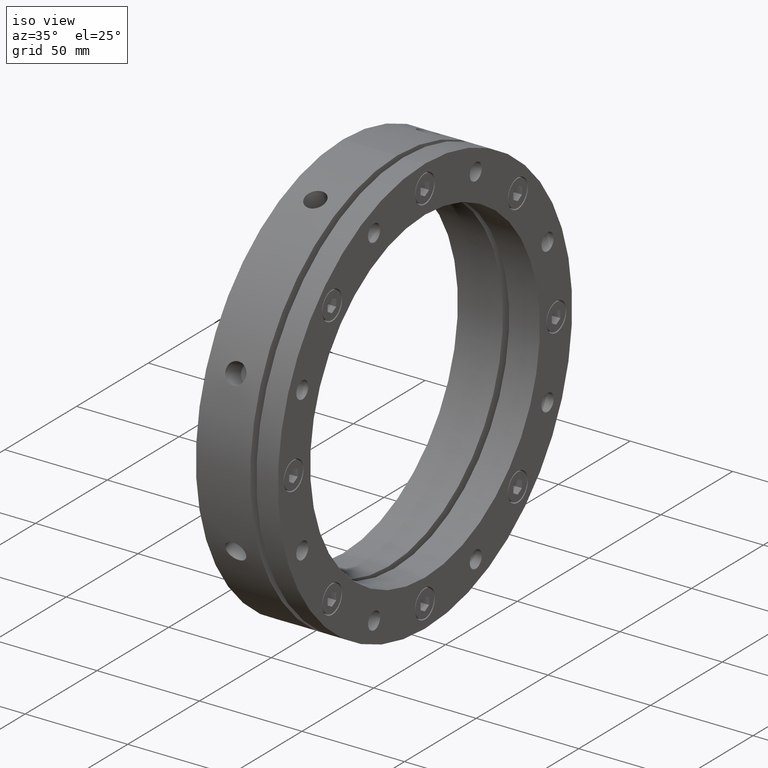
[diagram: clean part render]
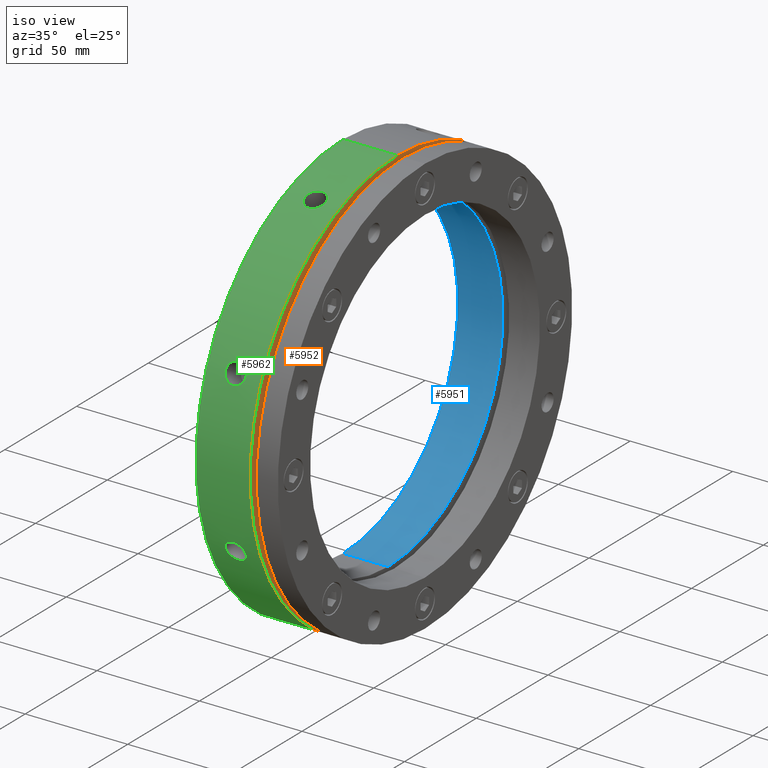
[diagram: same view with three faces highlighted in distinct colors, each labeled with its STEP entity id]
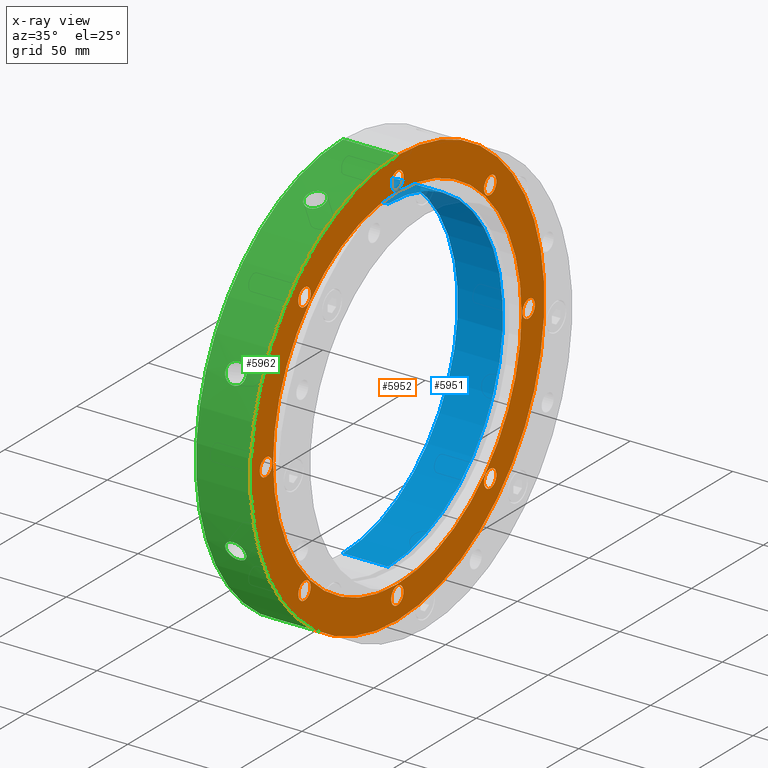
[diagram: x-ray of the same camera — body ghosted, the three highlighted faces saturated]
A machine part, iso view with three faces highlighted in distinct colors.
The next image is the same camera in x-ray (body ghosted, the three faces saturated) — at least one of them is partly hidden behind the body in this view.
Their STEP definitions:

[orange] entity #5952 — the highlighted planar face has unit normal (-1, 0, 0).
#6 = AXIS2_PLACEMENT_3D ( 'NONE', #4131, #4132, #4133 ) ;
#7 = AXIS2_PLACEMENT_3D ( 'NONE', #4134, #4135, #4136 ) ;
#8 = AXIS2_PLACEMENT_3D ( 'NONE', #4137, #4138, #4139 ) ;
#9 = AXIS2_PLACEMENT_3D ( 'NONE', #4140, #4141, #4142 ) ;
#10 = AXIS2_PLACEMENT_3D ( 'NONE', #4143, #4144, #4145 ) ;
#11 = AXIS2_PLACEMENT_3D ( 'NONE', #4146, #4147, #4148 ) ;
#29 = AXIS2_PLACEMENT_3D ( 'NONE', #4203, #4204, #4205 ) ;
#39 = AXIS2_PLACEMENT_3D ( 'NONE', #4636, #4637, #4638 ) ;
#121 = AXIS2_PLACEMENT_3D ( 'NONE', #404, #400, #406 ) ;
#400 = DIRECTION ( 'NONE',  ( -1.000000000000000000, 0.0000000000000000000, 0.0000000000000000000 ) ) ;
#402 = PLANE ( 'NONE',  #121 ) ;
#404 = CARTESIAN_POINT ( 'NONE',  ( 26.49999999999997900, 94.50000000000000000, 0.0000000000000000000 ) ) ;
#406 = DIRECTION ( 'NONE',  ( 0.0000000000000000000, 0.0000000000000000000, 1.000000000000000000 ) ) ;
#836 = AXIS2_PLACEMENT_3D ( 'NONE', #4128, #4129, #4130 ) ;
#837 = VERTEX_POINT ( 'NONE', #1422 ) ;
#911 = VERTEX_POINT ( 'NONE', #1492 ) ;
#912 = VERTEX_POINT ( 'NONE', #1493 ) ;
#915 = VERTEX_POINT ( 'NONE', #1496 ) ;
#916 = VERTEX_POINT ( 'NONE', #1497 ) ;
#919 = VERTEX_POINT ( 'NONE', #1500 ) ;
#920 = VERTEX_POINT ( 'NONE', #1501 ) ;
#923 = VERTEX_POINT ( 'NONE', #1504 ) ;
#924 = VERTEX_POINT ( 'NONE', #1505 ) ;
#927 = VERTEX_POINT ( 'NONE', #1508 ) ;
#928 = VERTEX_POINT ( 'NONE', #1509 ) ;
#931 = VERTEX_POINT ( 'NONE', #1512 ) ;
#932 = VERTEX_POINT ( 'NONE', #1513 ) ;
#935 = VERTEX_POINT ( 'NONE', #1516 ) ;
#936 = VERTEX_POINT ( 'NONE', #1517 ) ;
#939 = VERTEX_POINT ( 'NONE', #1520 ) ;
#940 = VERTEX_POINT ( 'NONE', #1521 ) ;
#943 = VERTEX_POINT ( 'NONE', #1524 ) ;
#944 = VERTEX_POINT ( 'NONE', #1525 ) ;
#1217 = EDGE_LOOP ( 'NONE', ( #2996, #2997 ) ) ;
#1221 = EDGE_LOOP ( 'NONE', ( #2994, #2995 ) ) ;
#1237 = EDGE_LOOP ( 'NONE', ( #3000, #3001 ) ) ;
#1238 = EDGE_LOOP ( 'NONE', ( #2998, #2999 ) ) ;
#1247 = EDGE_LOOP ( 'NONE', ( #3002, #3003 ) ) ;
#1248 = EDGE_LOOP ( 'NONE', ( #3004, #3005 ) ) ;
#1249 = EDGE_LOOP ( 'NONE', ( #3006, #3007 ) ) ;
#1250 = EDGE_LOOP ( 'NONE', ( #3008, #3009 ) ) ;
#1251 = EDGE_LOOP ( 'NONE', ( #3010, #3011 ) ) ;
#1252 = EDGE_LOOP ( 'NONE', ( #3012, #3013 ) ) ;
#1422 = CARTESIAN_POINT ( 'NONE',  ( 26.49999999999997900, 0.0000000000000000000, -102.5000000000000100 ) ) ;
#1492 = CARTESIAN_POINT ( 'NONE',  ( 26.49999999999997900, 1.059319481262460600E-014, -86.50000000000001400 ) ) ;
#1493 = CARTESIAN_POINT ( 'NONE',  ( 26.49999999999997900, 0.0000000000000000000, 86.50000000000001400 ) ) ;
#1496 = CARTESIAN_POINT ( 'NONE',  ( 26.49999999999997900, 5.265981236333620400E-016, 95.79999999999999700 ) ) ;
#1497 = CARTESIAN_POINT ( 'NONE',  ( 26.49999999999997900, 0.0000000000000000000, 87.20000000000000300 ) ) ;
#1500 = CARTESIAN_POINT ( 'NONE',  ( 26.49999999999997900, -64.70027047856909500, 69.00027047856910700 ) ) ;
#1501 = CARTESIAN_POINT ( 'NONE',  ( 26.49999999999997900, -64.70027047856909500, 60.40027047856910500 ) ) ;
#1504 = CARTESIAN_POINT ( 'NONE',  ( 26.49999999999997900, -91.50000000000000000, 4.299999999999999800 ) ) ;
#1505 = CARTESIAN_POINT ( 'NONE',  ( 26.49999999999997900, -91.50000000000000000, -4.299999999999999800 ) ) ;
#1508 = CARTESIAN_POINT ( 'NONE',  ( 26.49999999999997900, -64.70027047856910900, -60.40027047856909100 ) ) ;
#1509 = CARTESIAN_POINT ( 'NONE',  ( 26.49999999999997900, -64.70027047856910900, -69.00027047856909200 ) ) ;
#1512 = CARTESIAN_POINT ( 'NONE',  ( 26.49999999999997900, -1.723697187636663600E-014, -87.20000000000000300 ) ) ;
#1513 = CARTESIAN_POINT ( 'NONE',  ( 26.49999999999997900, -1.776356999999999900E-014, -95.79999999999999700 ) ) ;
#1516 = CARTESIAN_POINT ( 'NONE',  ( 26.49999999999997900, 64.70027047856908100, -60.40027047856910500 ) ) ;
#1517 = CARTESIAN_POINT ( 'NONE',  ( 26.49999999999997900, 64.70027047856908100, -69.00027047856910700 ) ) ;
#1520 = CARTESIAN_POINT ( 'NONE',  ( 26.49999999999997900, 91.50000000000000000, 4.299999999999982900 ) ) ;
#1521 = CARTESIAN_POINT ( 'NONE',  ( 26.49999999999997900, 91.50000000000000000, -4.300000000000017600 ) ) ;
#1524 = CARTESIAN_POINT ( 'NONE',  ( 26.49999999999997900, 64.70027047856912400, 69.00027047856907800 ) ) ;
#1525 = CARTESIAN_POINT ( 'NONE',  ( 26.49999999999997900, 64.70027047856912400, 60.40027047856907700 ) ) ;
#1705 = CARTESIAN_POINT ( 'NONE',  ( 26.49999999999997900, 0.0000000000000000000, 0.0000000000000000000 ) ) ;
#1706 = DIRECTION ( 'NONE',  ( 1.000000000000000000, -0.0000000000000000000, -0.0000000000000000000 ) ) ;
#1707 = DIRECTION ( 'NONE',  ( 0.0000000000000000000, 0.0000000000000000000, 1.000000000000000000 ) ) ;
#1917 = CARTESIAN_POINT ( 'NONE',  ( 26.49999999999997900, 0.0000000000000000000, 91.50000000000000000 ) ) ;
#1918 = DIRECTION ( 'NONE',  ( 1.000000000000000000, 0.0000000000000000000, 0.0000000000000000000 ) ) ;
#1919 = DIRECTION ( 'NONE',  ( 0.0000000000000000000, 0.0000000000000000000, -1.000000000000000000 ) ) ;
#1927 = CARTESIAN_POINT ( 'NONE',  ( 26.49999999999997900, -64.70027047856909500, 64.70027047856910900 ) ) ;
#1928 = DIRECTION ( 'NONE',  ( 1.000000000000000000, 0.0000000000000000000, 0.0000000000000000000 ) ) ;
#1929 = DIRECTION ( 'NONE',  ( 0.0000000000000000000, 0.0000000000000000000, -1.000000000000000000 ) ) ;
#1937 = CARTESIAN_POINT ( 'NONE',  ( 26.49999999999997900, -91.50000000000000000, 0.0000000000000000000 ) ) ;
#1938 = DIRECTION ( 'NONE',  ( 1.000000000000000000, 0.0000000000000000000, 0.0000000000000000000 ) ) ;
#1939 = DIRECTION ( 'NONE',  ( 0.0000000000000000000, 0.0000000000000000000, -1.000000000000000000 ) ) ;
#1947 = CARTESIAN_POINT ( 'NONE',  ( 26.49999999999997900, -64.70027047856910900, -64.70027047856909500 ) ) ;
#1948 = DIRECTION ( 'NONE',  ( 1.000000000000000000, 0.0000000000000000000, 0.0000000000000000000 ) ) ;
#1949 = DIRECTION ( 'NONE',  ( 0.0000000000000000000, 0.0000000000000000000, -1.000000000000000000 ) ) ;
#1957 = CARTESIAN_POINT ( 'NONE',  ( 26.49999999999997900, -1.776356999999999900E-014, -91.50000000000000000 ) ) ;
#1958 = DIRECTION ( 'NONE',  ( 1.000000000000000000, 0.0000000000000000000, 0.0000000000000000000 ) ) ;
#1959 = DIRECTION ( 'NONE',  ( 0.0000000000000000000, 0.0000000000000000000, -1.000000000000000000 ) ) ;
#1967 = CARTESIAN_POINT ( 'NONE',  ( 26.49999999999997900, 64.70027047856908100, -64.70027047856910900 ) ) ;
#1968 = DIRECTION ( 'NONE',  ( 1.000000000000000000, 0.0000000000000000000, 0.0000000000000000000 ) ) ;
#1969 = DIRECTION ( 'NONE',  ( 0.0000000000000000000, 0.0000000000000000000, -1.000000000000000000 ) ) ;
#1977 = CARTESIAN_POINT ( 'NONE',  ( 26.49999999999997900, 91.50000000000000000, -1.776356999999999900E-014 ) ) ;
#1978 = DIRECTION ( 'NONE',  ( 1.000000000000000000, 0.0000000000000000000, 0.0000000000000000000 ) ) ;
#1979 = DIRECTION ( 'NONE',  ( 0.0000000000000000000, 0.0000000000000000000, -1.000000000000000000 ) ) ;
#1987 = CARTESIAN_POINT ( 'NONE',  ( 26.49999999999997900, 64.70027047856912400, 64.70027047856908100 ) ) ;
#1988 = DIRECTION ( 'NONE',  ( 1.000000000000000000, 0.0000000000000000000, 0.0000000000000000000 ) ) ;
#1989 = DIRECTION ( 'NONE',  ( 0.0000000000000000000, 0.0000000000000000000, -1.000000000000000000 ) ) ;
#2082 = CARTESIAN_POINT ( 'NONE',  ( 26.49999999999997900, 1.255262969126037200E-014, 102.5000000000000100 ) ) ;
#2290 = AXIS2_PLACEMENT_3D ( 'NONE', #4122, #4123, #4124 ) ;
#2387 = AXIS2_PLACEMENT_3D ( 'NONE', #1987, #1988, #1989 ) ;
#2389 = AXIS2_PLACEMENT_3D ( 'NONE', #1977, #1978, #1979 ) ;
#2391 = AXIS2_PLACEMENT_3D ( 'NONE', #1967, #1968, #1969 ) ;
#2393 = AXIS2_PLACEMENT_3D ( 'NONE', #1957, #1958, #1959 ) ;
#2395 = AXIS2_PLACEMENT_3D ( 'NONE', #1947, #1948, #1949 ) ;
#2397 = AXIS2_PLACEMENT_3D ( 'NONE', #1937, #1938, #1939 ) ;
#2399 = AXIS2_PLACEMENT_3D ( 'NONE', #1927, #1928, #1929 ) ;
#2400 = AXIS2_PLACEMENT_3D ( 'NONE', #1917, #1918, #1919 ) ;
#2425 = AXIS2_PLACEMENT_3D ( 'NONE', #1705, #1706, #1707 ) ;
#2449 = EDGE_CURVE ( 'NONE', #911, #912, #3179, .T. ) ;
#2994 = ORIENTED_EDGE ( 'NONE', *, *, #5694, .F. ) ;
#2995 = ORIENTED_EDGE ( 'NONE', *, *, #2449, .F. ) ;
#2996 = ORIENTED_EDGE ( 'NONE', *, *, #5693, .F. ) ;
#2997 = ORIENTED_EDGE ( 'NONE', *, *, #5412, .F. ) ;
#2998 = ORIENTED_EDGE ( 'NONE', *, *, #5692, .F. ) ;
#2999 = ORIENTED_EDGE ( 'NONE', *, *, #5416, .F. ) ;
#3000 = ORIENTED_EDGE ( 'NONE', *, *, #5691, .F. ) ;
#3001 = ORIENTED_EDGE ( 'NONE', *, *, #5420, .F. ) ;
#3002 = ORIENTED_EDGE ( 'NONE', *, *, #5690, .F. ) ;
#3003 = ORIENTED_EDGE ( 'NONE', *, *, #5424, .F. ) ;
#3004 = ORIENTED_EDGE ( 'NONE', *, *, #5689, .F. ) ;
#3005 = ORIENTED_EDGE ( 'NONE', *, *, #5428, .F. ) ;
#3006 = ORIENTED_EDGE ( 'NONE', *, *, #5688, .F. ) ;
#3007 = ORIENTED_EDGE ( 'NONE', *, *, #5432, .F. ) ;
#3008 = ORIENTED_EDGE ( 'NONE', *, *, #5687, .F. ) ;
#3009 = ORIENTED_EDGE ( 'NONE', *, *, #5436, .F. ) ;
#3010 = ORIENTED_EDGE ( 'NONE', *, *, #5686, .F. ) ;
#3011 = ORIENTED_EDGE ( 'NONE', *, *, #5440, .F. ) ;
#3012 = ORIENTED_EDGE ( 'NONE', *, *, #5712, .F. ) ;
#3013 = ORIENTED_EDGE ( 'NONE', *, *, #5745, .F. ) ;
#3179 = CIRCLE ( 'NONE', #2425, 86.50000000000001400 ) ;
#3265 = CIRCLE ( 'NONE', #2400, 4.299999999999998000 ) ;
#3271 = CIRCLE ( 'NONE', #2399, 4.299999999999998000 ) ;
#3277 = CIRCLE ( 'NONE', #2397, 4.299999999999999800 ) ;
#3283 = CIRCLE ( 'NONE', #2395, 4.299999999999998000 ) ;
#3289 = CIRCLE ( 'NONE', #2393, 4.299999999999998000 ) ;
#3295 = CIRCLE ( 'NONE', #2391, 4.299999999999998000 ) ;
#3301 = CIRCLE ( 'NONE', #2389, 4.299999999999999800 ) ;
#3307 = CIRCLE ( 'NONE', #2387, 4.299999999999998000 ) ;
#3603 = CIRCLE ( 'NONE', #2290, 4.299999999999998000 ) ;
#3604 = CIRCLE ( 'NONE', #5755, 4.299999999999999800 ) ;
#3605 = CIRCLE ( 'NONE', #836, 4.299999999999998000 ) ;
#3606 = CIRCLE ( 'NONE', #6, 4.299999999999998000 ) ;
#3607 = CIRCLE ( 'NONE', #7, 4.299999999999998000 ) ;
#3608 = CIRCLE ( 'NONE', #8, 4.299999999999999800 ) ;
#3609 = CIRCLE ( 'NONE', #9, 4.299999999999998000 ) ;
#3610 = CIRCLE ( 'NONE', #10, 4.299999999999998000 ) ;
#3611 = CIRCLE ( 'NONE', #11, 86.50000000000001400 ) ;
#3629 = CIRCLE ( 'NONE', #29, 102.5000000000000100 ) ;
#4122 = CARTESIAN_POINT ( 'NONE',  ( 26.49999999999997900, 64.70027047856912400, 64.70027047856908100 ) ) ;
#4123 = DIRECTION ( 'NONE',  ( 1.000000000000000000, 0.0000000000000000000, 0.0000000000000000000 ) ) ;
#4124 = DIRECTION ( 'NONE',  ( 0.0000000000000000000, 0.0000000000000000000, -1.000000000000000000 ) ) ;
#4125 = CARTESIAN_POINT ( 'NONE',  ( 26.49999999999997900, 91.50000000000000000, -1.776356999999999900E-014 ) ) ;
#4126 = DIRECTION ( 'NONE',  ( 1.000000000000000000, 0.0000000000000000000, 0.0000000000000000000 ) ) ;
#4127 = DIRECTION ( 'NONE',  ( 0.0000000000000000000, 0.0000000000000000000, -1.000000000000000000 ) ) ;
#4128 = CARTESIAN_POINT ( 'NONE',  ( 26.49999999999997900, 64.70027047856908100, -64.70027047856910900 ) ) ;
#4129 = DIRECTION ( 'NONE',  ( 1.000000000000000000, 0.0000000000000000000, 0.0000000000000000000 ) ) ;
#4130 = DIRECTION ( 'NONE',  ( 0.0000000000000000000, 0.0000000000000000000, -1.000000000000000000 ) ) ;
#4131 = CARTESIAN_POINT ( 'NONE',  ( 26.49999999999997900, -1.776356999999999900E-014, -91.50000000000000000 ) ) ;
#4132 = DIRECTION ( 'NONE',  ( 1.000000000000000000, 0.0000000000000000000, 0.0000000000000000000 ) ) ;
#4133 = DIRECTION ( 'NONE',  ( 0.0000000000000000000, 0.0000000000000000000, -1.000000000000000000 ) ) ;
#4134 = CARTESIAN_POINT ( 'NONE',  ( 26.49999999999997900, -64.70027047856910900, -64.70027047856909500 ) ) ;
#4135 = DIRECTION ( 'NONE',  ( 1.000000000000000000, 0.0000000000000000000, 0.0000000000000000000 ) ) ;
#4136 = DIRECTION ( 'NONE',  ( 0.0000000000000000000, 0.0000000000000000000, -1.000000000000000000 ) ) ;
#4137 = CARTESIAN_POINT ( 'NONE',  ( 26.49999999999997900, -91.50000000000000000, 0.0000000000000000000 ) ) ;
#4138 = DIRECTION ( 'NONE',  ( 1.000000000000000000, 0.0000000000000000000, 0.0000000000000000000 ) ) ;
#4139 = DIRECTION ( 'NONE',  ( 0.0000000000000000000, 0.0000000000000000000, -1.000000000000000000 ) ) ;
#4140 = CARTESIAN_POINT ( 'NONE',  ( 26.49999999999997900, -64.70027047856909500, 64.70027047856910900 ) ) ;
#4141 = DIRECTION ( 'NONE',  ( 1.000000000000000000, 0.0000000000000000000, 0.0000000000000000000 ) ) ;
#4142 = DIRECTION ( 'NONE',  ( 0.0000000000000000000, 0.0000000000000000000, -1.000000000000000000 ) ) ;
#4143 = CARTESIAN_POINT ( 'NONE',  ( 26.49999999999997900, 0.0000000000000000000, 91.50000000000000000 ) ) ;
#4144 = DIRECTION ( 'NONE',  ( 1.000000000000000000, 0.0000000000000000000, 0.0000000000000000000 ) ) ;
#4145 = DIRECTION ( 'NONE',  ( 0.0000000000000000000, 0.0000000000000000000, -1.000000000000000000 ) ) ;
#4146 = CARTESIAN_POINT ( 'NONE',  ( 26.49999999999997900, 0.0000000000000000000, 0.0000000000000000000 ) ) ;
#4147 = DIRECTION ( 'NONE',  ( 1.000000000000000000, -0.0000000000000000000, -0.0000000000000000000 ) ) ;
#4148 = DIRECTION ( 'NONE',  ( 0.0000000000000000000, 0.0000000000000000000, 1.000000000000000000 ) ) ;
#4203 = CARTESIAN_POINT ( 'NONE',  ( 26.49999999999997900, 0.0000000000000000000, 0.0000000000000000000 ) ) ;
#4204 = DIRECTION ( 'NONE',  ( -1.000000000000000000, -0.0000000000000000000, -0.0000000000000000000 ) ) ;
#4205 = DIRECTION ( 'NONE',  ( 0.0000000000000000000, 0.0000000000000000000, -1.000000000000000000 ) ) ;
#4636 = CARTESIAN_POINT ( 'NONE',  ( 26.49999999999997900, 0.0000000000000000000, 0.0000000000000000000 ) ) ;
#4637 = DIRECTION ( 'NONE',  ( -1.000000000000000000, -0.0000000000000000000, -0.0000000000000000000 ) ) ;
#4638 = DIRECTION ( 'NONE',  ( 0.0000000000000000000, 0.0000000000000000000, -1.000000000000000000 ) ) ;
#4824 = CIRCLE ( 'NONE', #39, 102.5000000000000100 ) ;
#5027 = FACE_BOUND ( 'NONE', #1221, .T. ) ;
#5029 = FACE_BOUND ( 'NONE', #1237, .T. ) ;
#5031 = FACE_BOUND ( 'NONE', #1238, .T. ) ;
#5033 = FACE_BOUND ( 'NONE', #1247, .T. ) ;
#5035 = FACE_BOUND ( 'NONE', #1217, .T. ) ;
#5036 = FACE_BOUND ( 'NONE', #1248, .T. ) ;
#5037 = FACE_BOUND ( 'NONE', #1249, .T. ) ;
#5038 = FACE_BOUND ( 'NONE', #1250, .T. ) ;
#5039 = FACE_BOUND ( 'NONE', #1251, .T. ) ;
#5040 = FACE_OUTER_BOUND ( 'NONE', #1252, .T. ) ;
#5412 = EDGE_CURVE ( 'NONE', #915, #916, #3265, .T. ) ;
#5416 = EDGE_CURVE ( 'NONE', #919, #920, #3271, .T. ) ;
#5420 = EDGE_CURVE ( 'NONE', #923, #924, #3277, .T. ) ;
#5424 = EDGE_CURVE ( 'NONE', #927, #928, #3283, .T. ) ;
#5428 = EDGE_CURVE ( 'NONE', #931, #932, #3289, .T. ) ;
#5432 = EDGE_CURVE ( 'NONE', #935, #936, #3295, .T. ) ;
#5436 = EDGE_CURVE ( 'NONE', #939, #940, #3301, .T. ) ;
#5440 = EDGE_CURVE ( 'NONE', #943, #944, #3307, .T. ) ;
#5500 = VERTEX_POINT ( 'NONE', #2082 ) ;
#5686 = EDGE_CURVE ( 'NONE', #944, #943, #3603, .T. ) ;
#5687 = EDGE_CURVE ( 'NONE', #940, #939, #3604, .T. ) ;
#5688 = EDGE_CURVE ( 'NONE', #936, #935, #3605, .T. ) ;
#5689 = EDGE_CURVE ( 'NONE', #932, #931, #3606, .T. ) ;
#5690 = EDGE_CURVE ( 'NONE', #928, #927, #3607, .T. ) ;
#5691 = EDGE_CURVE ( 'NONE', #924, #923, #3608, .T. ) ;
#5692 = EDGE_CURVE ( 'NONE', #920, #919, #3609, .T. ) ;
#5693 = EDGE_CURVE ( 'NONE', #916, #915, #3610, .T. ) ;
#5694 = EDGE_CURVE ( 'NONE', #912, #911, #3611, .T. ) ;
#5712 = EDGE_CURVE ( 'NONE', #837, #5500, #3629, .T. ) ;
#5745 = EDGE_CURVE ( 'NONE', #5500, #837, #4824, .T. ) ;
#5755 = AXIS2_PLACEMENT_3D ( 'NONE', #4125, #4126, #4127 ) ;
#5952 = ADVANCED_FACE ( 'NONE', ( #5027, #5035, #5031, #5029, #5033, #5036, #5037, #5038, #5039, #5040 ), #402, .F. ) ;

[blue] entity #5951 — the highlighted cylindrical surface (partial cylindrical patch) has radius 80 mm, axis along (1, 0, 0).
#28 = AXIS2_PLACEMENT_3D ( 'NONE', #4199, #4200, #4201 ) ;
#120 = AXIS2_PLACEMENT_3D ( 'NONE', #401, #399, #397 ) ;
#397 = DIRECTION ( 'NONE',  ( 0.0000000000000000000, 0.0000000000000000000, -1.000000000000000000 ) ) ;
#399 = DIRECTION ( 'NONE',  ( 1.000000000000000000, 0.0000000000000000000, 0.0000000000000000000 ) ) ;
#401 = CARTESIAN_POINT ( 'NONE',  ( 19.99999999999997900, 0.0000000000000000000, 0.0000000000000000000 ) ) ;
#858 = VERTEX_POINT ( 'NONE', #1439 ) ;
#865 = VERTEX_POINT ( 'NONE', #1446 ) ;
#866 = VERTEX_POINT ( 'NONE', #1447 ) ;
#867 = VERTEX_POINT ( 'NONE', #1448 ) ;
#1246 = EDGE_LOOP ( 'NONE', ( #2990, #2991, #2992, #2993 ) ) ;
#1439 = CARTESIAN_POINT ( 'NONE',  ( -2.428612866367529900E-014, 0.0000000000000000000, -80.00000000000000000 ) ) ;
#1446 = CARTESIAN_POINT ( 'NONE',  ( -2.428612866367529900E-014, 9.797174393178826100E-015, 80.00000000000000000 ) ) ;
#1447 = CARTESIAN_POINT ( 'NONE',  ( 21.99999999999996400, 0.0000000000000000000, -80.00000000000000000 ) ) ;
#1448 = CARTESIAN_POINT ( 'NONE',  ( 21.99999999999996400, 9.797174393178826100E-015, 80.00000000000000000 ) ) ;
#1827 = DIRECTION ( 'NONE',  ( 1.000000000000000000, 0.0000000000000000000, 0.0000000000000000000 ) ) ;
#1828 = CARTESIAN_POINT ( 'NONE',  ( 19.99999999999997900, 9.797174393178826100E-015, 80.00000000000000000 ) ) ;
#1832 = DIRECTION ( 'NONE',  ( 1.000000000000000000, 0.0000000000000000000, 0.0000000000000000000 ) ) ;
#1833 = CARTESIAN_POINT ( 'NONE',  ( 19.99999999999997900, 0.0000000000000000000, -80.00000000000000000 ) ) ;
#2990 = ORIENTED_EDGE ( 'NONE', *, *, #5378, .F. ) ;
#2991 = ORIENTED_EDGE ( 'NONE', *, *, #5711, .F. ) ;
#2992 = ORIENTED_EDGE ( 'NONE', *, *, #5380, .T. ) ;
#2993 = ORIENTED_EDGE ( 'NONE', *, *, #5677, .F. ) ;
#3214 = LINE ( 'NONE', #1828, #3218 ) ;
#3217 = LINE ( 'NONE', #1833, #3221 ) ;
#3218 = VECTOR ( 'NONE', #1827, 1000.000000000000000 ) ;
#3221 = VECTOR ( 'NONE', #1832, 1000.000000000000000 ) ;
#3594 = CIRCLE ( 'NONE', #5507, 80.00000000000000000 ) ;
#3628 = CIRCLE ( 'NONE', #28, 80.00000000000000000 ) ;
#4095 = CARTESIAN_POINT ( 'NONE',  ( 21.99999999999996400, 0.0000000000000000000, 0.0000000000000000000 ) ) ;
#4096 = DIRECTION ( 'NONE',  ( -1.000000000000000000, -0.0000000000000000000, -0.0000000000000000000 ) ) ;
#4097 = DIRECTION ( 'NONE',  ( 0.0000000000000000000, 0.0000000000000000000, -1.000000000000000000 ) ) ;
#4199 = CARTESIAN_POINT ( 'NONE',  ( -2.428612866367529900E-014, 0.0000000000000000000, 0.0000000000000000000 ) ) ;
#4200 = DIRECTION ( 'NONE',  ( 1.000000000000000000, 0.0000000000000000000, 0.0000000000000000000 ) ) ;
#4201 = DIRECTION ( 'NONE',  ( 0.0000000000000000000, 0.0000000000000000000, -1.000000000000000000 ) ) ;
#5025 = FACE_OUTER_BOUND ( 'NONE', #1246, .T. ) ;
#5034 = CYLINDRICAL_SURFACE ( 'NONE', #120, 80.00000000000000000 ) ;
#5378 = EDGE_CURVE ( 'NONE', #865, #867, #3214, .T. ) ;
#5380 = EDGE_CURVE ( 'NONE', #858, #866, #3217, .T. ) ;
#5507 = AXIS2_PLACEMENT_3D ( 'NONE', #4095, #4096, #4097 ) ;
#5677 = EDGE_CURVE ( 'NONE', #867, #866, #3594, .T. ) ;
#5711 = EDGE_CURVE ( 'NONE', #858, #865, #3628, .T. ) ;
#5951 = ADVANCED_FACE ( 'NONE', ( #5025 ), #5034, .F. ) ;

[green] entity #5962 — the highlighted cylindrical surface (partial cylindrical patch) has radius 102.5 mm, axis along (1, 0, 0).
#29 = AXIS2_PLACEMENT_3D ( 'NONE', #4203, #4204, #4205 ) ;
#30 = AXIS2_PLACEMENT_3D ( 'NONE', #4357, #4358, #4359 ) ;
#131 = AXIS2_PLACEMENT_3D ( 'NONE', #436, #434, #432 ) ;
#432 = DIRECTION ( 'NONE',  ( 0.0000000000000000000, 0.0000000000000000000, -1.000000000000000000 ) ) ;
#434 = DIRECTION ( 'NONE',  ( 1.000000000000000000, 0.0000000000000000000, 0.0000000000000000000 ) ) ;
#436 = CARTESIAN_POINT ( 'NONE',  ( 19.99999999999997200, 0.0000000000000000000, 0.0000000000000000000 ) ) ;
#837 = VERTEX_POINT ( 'NONE', #1422 ) ;
#840 = VERTEX_POINT ( 'NONE', #1418 ) ;
#843 = VERTEX_POINT ( 'NONE', #1424 ) ;
#846 = VERTEX_POINT ( 'NONE', #1423 ) ;
#847 = VERTEX_POINT ( 'NONE', #1428 ) ;
#850 = VERTEX_POINT ( 'NONE', #1431 ) ;
#851 = VERTEX_POINT ( 'NONE', #1432 ) ;
#854 = VERTEX_POINT ( 'NONE', #1435 ) ;
#855 = VERTEX_POINT ( 'NONE', #1436 ) ;
#1216 = EDGE_LOOP ( 'NONE', ( #3076, #3077 ) ) ;
#1271 = EDGE_LOOP ( 'NONE', ( #3066, #3067, #3068, #3069 ) ) ;
#1273 = EDGE_LOOP ( 'NONE', ( #3074, #3075 ) ) ;
#1274 = EDGE_LOOP ( 'NONE', ( #3072, #3073 ) ) ;
#1276 = EDGE_LOOP ( 'NONE', ( #3070, #3071 ) ) ;
#1418 = CARTESIAN_POINT ( 'NONE',  ( -3.122502256758252800E-014, 0.0000000000000000000, -102.5000000000000100 ) ) ;
#1422 = CARTESIAN_POINT ( 'NONE',  ( 26.49999999999997900, 0.0000000000000000000, -102.5000000000000100 ) ) ;
#1423 = CARTESIAN_POINT ( 'NONE',  ( 13.99999999999997700, -96.49833390416736700, 34.55895764805161700 ) ) ;
#1424 = CARTESIAN_POINT ( 'NONE',  ( 13.99999999999997700, -34.55895764805161700, 96.49833390416735300 ) ) ;
#1428 = CARTESIAN_POINT ( 'NONE',  ( 13.99999999999997700, -92.67149958051646800, 43.79775297316448500 ) ) ;
#1431 = CARTESIAN_POINT ( 'NONE',  ( 13.99999999999997700, -92.67149958051646800, -43.79775297316448500 ) ) ;
#1432 = CARTESIAN_POINT ( 'NONE',  ( 13.99999999999997700, -96.49833390416736700, -34.55895764805161700 ) ) ;
#1435 = CARTESIAN_POINT ( 'NONE',  ( 13.99999999999997700, -34.55895764805161700, -96.49833390416736700 ) ) ;
#1436 = CARTESIAN_POINT ( 'NONE',  ( 13.99999999999997700, -43.79775297316448500, -92.67149958051646800 ) ) ;
#1711 = CARTESIAN_POINT ( 'NONE',  ( 13.67389033251383500, -92.67149958051646800, -43.79775297316449200 ) ) ;
#1716 = CARTESIAN_POINT ( 'NONE',  ( 13.99999999999997700, -92.67149958051646800, -43.79775297316448500 ) ) ;
#1718 = CARTESIAN_POINT ( 'NONE',  ( 13.34266466475485800, -92.68547251286314300, -43.76822228346648600 ) ) ;
#1719 = CARTESIAN_POINT ( 'NONE',  ( 12.70151896101123500, -92.74006236523962300, -43.65243325725504800 ) ) ;
#1720 = CARTESIAN_POINT ( 'NONE',  ( 12.38989290089886800, -92.78037495279635000, -43.56681943617258700 ) ) ;
#1721 = CARTESIAN_POINT ( 'NONE',  ( 11.78463609896788700, -92.88672124449829000, -43.33962100217780000 ) ) ;
#1722 = CARTESIAN_POINT ( 'NONE',  ( 11.49197878941848600, -92.95298482820993500, -43.19751659002658800 ) ) ;
#1723 = CARTESIAN_POINT ( 'NONE',  ( 10.95037406600939700, -93.10512042007633200, -42.86862931774386700 ) ) ;
#1724 = CARTESIAN_POINT ( 'NONE',  ( 10.69793056358424000, -93.19152907126705500, -42.68071491030355700 ) ) ;
#1725 = CARTESIAN_POINT ( 'NONE',  ( 10.23120838005397300, -93.38500711275038700, -42.25570922901401600 ) ) ;
#1726 = CARTESIAN_POINT ( 'NONE',  ( 10.02414198692712500, -93.48912707948355200, -42.02506957268248300 ) ) ;
#1727 = CARTESIAN_POINT ( 'NONE',  ( 9.752678096406659900, -93.65471410371132800, -41.65408581184141900 ) ) ;
#1728 = CARTESIAN_POINT ( 'NONE',  ( 9.668681603407579300, -93.71152398288728600, -41.52615072388465500 ) ) ;
#1729 = CARTESIAN_POINT ( 'NONE',  ( 9.513952047296200500, -93.82834860369328600, -41.26150650960111200 ) ) ;
#1730 = CARTESIAN_POINT ( 'NONE',  ( 9.443039324532263000, -93.88860977178740100, -41.12422525470377400 ) ) ;
#1731 = CARTESIAN_POINT ( 'NONE',  ( 9.254906970430319300, -94.07032683489204300, -40.70768232030553700 ) ) ;
#1732 = CARTESIAN_POINT ( 'NONE',  ( 9.160429368411648500, -94.19373115929950300, -40.42145010402521200 ) ) ;
#1733 = CARTESIAN_POINT ( 'NONE',  ( 9.032670738789295900, -94.44454504004042400, -39.83190342429493600 ) ) ;
#1734 = CARTESIAN_POINT ( 'NONE',  ( 8.999772614276652800, -94.57258368870002100, -39.52702261448366300 ) ) ;
#1735 = CARTESIAN_POINT ( 'NONE',  ( 9.000229780272158900, -94.82536866394956100, -38.91668742413886400 ) ) ;
#1736 = CARTESIAN_POINT ( 'NONE',  ( 9.032863624753954200, -94.94817199450380900, -38.61601622952377300 ) ) ;
#1737 = CARTESIAN_POINT ( 'NONE',  ( 9.128446513428516000, -95.12733490544654600, -38.17152960546896900 ) ) ;
#1738 = CARTESIAN_POINT ( 'NONE',  ( 9.168137263232925000, -95.18621156484978500, -38.02446309306493100 ) ) ;
#1739 = CARTESIAN_POINT ( 'NONE',  ( 9.263537954345183700, -95.30228823027756800, -37.73259232622765300 ) ) ;
#1740 = CARTESIAN_POINT ( 'NONE',  ( 9.319505501482087300, -95.35962753744830400, -37.58742259505726900 ) ) ;
#1741 = CARTESIAN_POINT ( 'NONE',  ( 9.508006445550615000, -95.52548706371709400, -37.16480764003507900 ) ) ;
#1742 = CARTESIAN_POINT ( 'NONE',  ( 9.661750829796670100, -95.62913569831276600, -36.89704911386066800 ) ) ;
#1743 = CARTESIAN_POINT ( 'NONE',  ( 10.02491505194403100, -95.82340775655856600, -36.38953632072357200 ) ) ;
#1744 = CARTESIAN_POINT ( 'NONE',  ( 10.23620971061820700, -95.91433778901624400, -36.14889985148244700 ) ) ;
#1745 = CARTESIAN_POINT ( 'NONE',  ( 10.69768491139633100, -96.07598463955501700, -35.71705936269111000 ) ) ;
#1746 = CARTESIAN_POINT ( 'NONE',  ( 10.94947604815598800, -96.14780986420413500, -35.52297924380693000 ) ) ;
#1747 = CARTESIAN_POINT ( 'NONE',  ( 11.49622208827095800, -96.27386507315348800, -35.17991330170281800 ) ) ;
#1748 = CARTESIAN_POINT ( 'NONE',  ( 11.78719887957196400, -96.32695303132707900, -35.03403563424310400 ) ) ;
#1749 = CARTESIAN_POINT ( 'NONE',  ( 12.38890460059897300, -96.41186533988494000, -34.79968038365868900 ) ) ;
#1750 = CARTESIAN_POINT ( 'NONE',  ( 12.70407702409552400, -96.44433930333052300, -34.70941552868495000 ) ) ;
#1751 = CARTESIAN_POINT ( 'NONE',  ( 13.34946564792067600, -96.48768227574524300, -34.58874497656278600 ) ) ;
#1752 = CARTESIAN_POINT ( 'NONE',  ( 13.67389012558963500, -96.49833390416735300, -34.55895764805161700 ) ) ;
#1753 = CARTESIAN_POINT ( 'NONE',  ( 13.99999999999997700, -96.49833390416736700, -34.55895764805161700 ) ) ;
#1756 = CARTESIAN_POINT ( 'NONE',  ( 13.67389033251383200, -34.55895764805161000, -96.49833390416735300 ) ) ;
#1761 = CARTESIAN_POINT ( 'NONE',  ( 13.99999999999997700, -34.55895764805161700, -96.49833390416736700 ) ) ;
#1763 = CARTESIAN_POINT ( 'NONE',  ( 13.34266466475485800, -34.58971935420558500, -96.48733290844420200 ) ) ;
#1764 = CARTESIAN_POINT ( 'NONE',  ( 12.70151896101123500, -34.71019541462605000, -96.44405855762248300 ) ) ;
#1765 = CARTESIAN_POINT ( 'NONE',  ( 12.38989290089886800, -34.79923883210528900, -96.41202574820026400 ) ) ;
#1766 = CARTESIAN_POINT ( 'NONE',  ( 11.78463609896788700, -35.03509056947445500, -96.32657037886413300 ) ) ;
#1767 = CARTESIAN_POINT ( 'NONE',  ( 11.49197878941849500, -35.18242899233133200, -96.27294281478371800 ) ) ;
#1768 = CARTESIAN_POINT ( 'NONE',  ( 10.95037406600940800, -35.52256352147696800, -96.14796050297523800 ) ) ;
#1769 = CARTESIAN_POINT ( 'NONE',  ( 10.69793056358424700, -35.71653921647079200, -96.07618509440165200 ) ) ;
#1770 = CARTESIAN_POINT ( 'NONE',  ( 10.23120838005398200, -36.15387325089699300, -95.91247033026257900 ) ) ;
#1771 = CARTESIAN_POINT ( 'NONE',  ( 10.02414198692713000, -36.39058405043346800, -95.82300739979392300 ) ) ;
#1772 = CARTESIAN_POINT ( 'NONE',  ( 9.752678096406668800, -36.76999689114227700, -95.67776997450116000 ) ) ;
#1773 = CARTESIAN_POINT ( 'NONE',  ( 9.668681603407588200, -36.90063131019189100, -95.62747685705890900 ) ) ;
#1774 = CARTESIAN_POINT ( 'NONE',  ( 9.513952047296204000, -37.17037051029504400, -95.52295262011864500 ) ) ;
#1775 = CARTESIAN_POINT ( 'NONE',  ( 9.443039324532264800, -37.31005409716427600, -95.46849119445251100 ) ) ;
#1776 = CARTESIAN_POINT ( 'NONE',  ( 9.254906970430324600, -37.73308779831122500, -95.30244422846276100 ) ) ;
#1777 = CARTESIAN_POINT ( 'NONE',  ( 9.160429368411652000, -38.02274457405336200, -95.18730752195321500 ) ) ;
#1778 = CARTESIAN_POINT ( 'NONE',  ( 9.032670738789303000, -38.61696922500430400, -94.94778726277753800 ) ) ;
#1779 = CARTESIAN_POINT ( 'NONE',  ( 8.999772614276656300, -38.92308950979665400, -94.82274097142747800 ) ) ;
#1780 = CARTESIAN_POINT ( 'NONE',  ( 9.000229780272162500, -39.53340763186722700, -94.56991478971892200 ) ) ;
#1781 = CARTESIAN_POINT ( 'NONE',  ( 9.032863624753954200, -39.83284934027425100, -94.44414321688633200 ) ) ;
#1782 = CARTESIAN_POINT ( 'NONE',  ( 9.128446513428512400, -40.27383615555482500, -94.25653102013514200 ) ) ;
#1783 = CARTESIAN_POINT ( 'NONE',  ( 9.168137263232917900, -40.41945996887881200, -94.19417137704647300 ) ) ;
#1784 = CARTESIAN_POINT ( 'NONE',  ( 9.263537954345178300, -40.70792236460110300, -94.06986617584726700 ) ) ;
#1785 = CARTESIAN_POINT ( 'NONE',  ( 9.319505501482087300, -40.85111787886369700, -94.00776068744262700 ) ) ;
#1786 = CARTESIAN_POINT ( 'NONE',  ( 9.508006445550606100, -41.26723217513974600, -93.82620718266456100 ) ) ;
#1787 = CARTESIAN_POINT ( 'NONE',  ( 9.661750829796663000, -41.52985669710151500, -93.71016396546946200 ) ) ;
#1788 = CARTESIAN_POINT ( 'NONE',  ( 10.02491505194402400, -42.02609352444837800, -93.48866931768398600 ) ) ;
#1789 = CARTESIAN_POINT ( 'NONE',  ( 10.23620971061820000, -42.26054644621390100, -93.38281088104713500 ) ) ;
#1790 = CARTESIAN_POINT ( 'NONE',  ( 10.69768491139633100, -42.68020536840258200, -93.19175512720525500 ) ) ;
#1791 = CARTESIAN_POINT ( 'NONE',  ( 10.94947604815598500, -42.86822883996871500, -93.10530786245841700 ) ) ;
#1792 = CARTESIAN_POINT ( 'NONE',  ( 11.49622208827095300, -43.19994758707663600, -92.95185810145442000 ) ) ;
#1793 = CARTESIAN_POINT ( 'NONE',  ( 11.78719887957195500, -43.34063753018497800, -92.88624586879390700 ) ) ;
#1794 = CARTESIAN_POINT ( 'NONE',  ( 12.38890460059896100, -43.56639378626738300, -92.78057375108643600 ) ) ;
#1795 = CARTESIAN_POINT ( 'NONE',  ( 12.70407702409552400, -43.65318323708648800, -92.73970941979604300 ) ) ;
#1796 = CARTESIAN_POINT ( 'NONE',  ( 13.34946564792067000, -43.76915831249284800, -92.68503056381217700 ) ) ;
#1797 = CARTESIAN_POINT ( 'NONE',  ( 13.67389012558962800, -43.79775297316449200, -92.67149958051646800 ) ) ;
#1798 = CARTESIAN_POINT ( 'NONE',  ( 13.99999999999997700, -43.79775297316448500, -92.67149958051646800 ) ) ;
#2071 = CARTESIAN_POINT ( 'NONE',  ( -3.122502256758252800E-014, 1.255262969126037200E-014, 102.5000000000000100 ) ) ;
#2082 = CARTESIAN_POINT ( 'NONE',  ( 26.49999999999997900, 1.255262969126037200E-014, 102.5000000000000100 ) ) ;
#2085 = CARTESIAN_POINT ( 'NONE',  ( 13.99999999999997700, -43.79775297316449200, 92.67149958051645300 ) ) ;
#2454 = EDGE_CURVE ( 'NONE', #850, #851, #5762, .T. ) ;
#2458 = EDGE_CURVE ( 'NONE', #854, #855, #5760, .T. ) ;
#3066 = ORIENTED_EDGE ( 'NONE', *, *, #5738, .F. ) ;
#3067 = ORIENTED_EDGE ( 'NONE', *, *, #5717, .T. ) ;
#3068 = ORIENTED_EDGE ( 'NONE', *, *, #5746, .T. ) ;
#3069 = ORIENTED_EDGE ( 'NONE', *, *, #5712, .T. ) ;
#3070 = ORIENTED_EDGE ( 'NONE', *, *, #5749, .T. ) ;
#3071 = ORIENTED_EDGE ( 'NONE', *, *, #5716, .T. ) ;
#3072 = ORIENTED_EDGE ( 'NONE', *, *, #5753, .T. ) ;
#3073 = ORIENTED_EDGE ( 'NONE', *, *, #5715, .T. ) ;
#3074 = ORIENTED_EDGE ( 'NONE', *, *, #2454, .T. ) ;
#3075 = ORIENTED_EDGE ( 'NONE', *, *, #5714, .T. ) ;
#3076 = ORIENTED_EDGE ( 'NONE', *, *, #2458, .T. ) ;
#3077 = ORIENTED_EDGE ( 'NONE', *, *, #5713, .T. ) ;
#3629 = CIRCLE ( 'NONE', #29, 102.5000000000000100 ) ;
#3631 = CIRCLE ( 'NONE', #30, 102.5000000000000100 ) ;
#4194 = CARTESIAN_POINT ( 'NONE',  ( 13.99999999999997700, -43.79775297316448500, -92.67149958051646800 ) ) ;
#4198 = CARTESIAN_POINT ( 'NONE',  ( 13.99999999999997700, -96.49833390416736700, -34.55895764805161700 ) ) ;
#4202 = CARTESIAN_POINT ( 'NONE',  ( 14.32610987450070500, -43.79775297316449900, -92.67149958051649600 ) ) ;
#4203 = CARTESIAN_POINT ( 'NONE',  ( 26.49999999999997900, 0.0000000000000000000, 0.0000000000000000000 ) ) ;
#4204 = DIRECTION ( 'NONE',  ( -1.000000000000000000, -0.0000000000000000000, -0.0000000000000000000 ) ) ;
#4205 = DIRECTION ( 'NONE',  ( 0.0000000000000000000, 0.0000000000000000000, -1.000000000000000000 ) ) ;
#4206 = CARTESIAN_POINT ( 'NONE',  ( 14.32610987450070900, -96.49833390416735300, -34.55895764805161700 ) ) ;
#4207 = CARTESIAN_POINT ( 'NONE',  ( 14.65733575371293500, -43.76822224550216600, -92.68547253084597100 ) ) ;
#4208 = CARTESIAN_POINT ( 'NONE',  ( 15.29848184151969700, -43.65243307471053700, -92.74006245121782400 ) ) ;
#4209 = CARTESIAN_POINT ( 'NONE',  ( 15.61010808271129400, -43.56681914736616800, -92.78037508862536200 ) ) ;
#4210 = CARTESIAN_POINT ( 'NONE',  ( 16.21536522272569100, -43.33962042562986700, -92.88672151372148300 ) ) ;
#4211 = CARTESIAN_POINT ( 'NONE',  ( 16.50802265644297500, -43.19751584520778900, -92.95298517476183500 ) ) ;
#4212 = CARTESIAN_POINT ( 'NONE',  ( 17.04962758242719200, -42.86862818356194500, -93.10512094270642100 ) ) ;
#4213 = CARTESIAN_POINT ( 'NONE',  ( 17.30207116379845900, -42.68071355255321500, -93.19152969381595100 ) ) ;
#4214 = CARTESIAN_POINT ( 'NONE',  ( 17.76879344786818400, -42.25570734923761800, -93.38500796404135000 ) ) ;
#4215 = CARTESIAN_POINT ( 'NONE',  ( 17.97585978668183400, -42.02506748346313300, -93.48912801946015300 ) ) ;
#4216 = CARTESIAN_POINT ( 'NONE',  ( 18.24732360166879600, -41.65408332394018500, -93.65471521044420900 ) ) ;
#4217 = CARTESIAN_POINT ( 'NONE',  ( 18.33132006099478400, -41.52614809736072500, -93.71152514701462600 ) ) ;
#4218 = CARTESIAN_POINT ( 'NONE',  ( 18.48604952963857400, -41.26150359224656200, -93.82834988685728200 ) ) ;
#4219 = CARTESIAN_POINT ( 'NONE',  ( 18.55696218777416800, -41.12422220259549000, -93.88861110885304100 ) ) ;
#4220 = CARTESIAN_POINT ( 'NONE',  ( 18.74509430430705200, -40.70767890534116200, -94.07032831350801400 ) ) ;
#4221 = CARTESIAN_POINT ( 'NONE',  ( 18.83957171716017200, -40.42144643817180600, -94.19373273338609900 ) ) ;
#4222 = CARTESIAN_POINT ( 'NONE',  ( 18.96732987876120500, -39.83189923101232200, -94.44454680950639200 ) ) ;
#4223 = CARTESIAN_POINT ( 'NONE',  ( 19.00022771420598000, -39.52701772956458400, -94.57258572944347500 ) ) ;
#4224 = CARTESIAN_POINT ( 'NONE',  ( 18.99976988428112900, -38.91668301859783700, -94.82537047107297200 ) ) ;
#4225 = CARTESIAN_POINT ( 'NONE',  ( 18.96713576489195000, -38.61601205576293700, -94.94817369115698100 ) ) ;
#4226 = CARTESIAN_POINT ( 'NONE',  ( 18.87155251866171600, -38.17152577216049300, -95.12733644341952300 ) ) ;
#4227 = CARTESIAN_POINT ( 'NONE',  ( 18.83186165902428400, -38.02445937200434400, -95.18621305111700800 ) ) ;
#4228 = CARTESIAN_POINT ( 'NONE',  ( 18.73646076360221400, -37.73258882769414400, -95.30228961523442900 ) ) ;
#4229 = CARTESIAN_POINT ( 'NONE',  ( 18.68049313187260200, -37.58741923546415400, -95.35962886143504100 ) ) ;
#4230 = CARTESIAN_POINT ( 'NONE',  ( 18.49199198372262700, -37.16480470971977500, -95.52548820278835300 ) ) ;
#4231 = CARTESIAN_POINT ( 'NONE',  ( 18.33824750578518700, -36.89704644907716600, -95.62913672570901700 ) ) ;
#4232 = CARTESIAN_POINT ( 'NONE',  ( 17.97508315744156000, -36.38953415719004200, -95.82340857740555900 ) ) ;
#4233 = CARTESIAN_POINT ( 'NONE',  ( 17.76378849477159200, -36.14889795928059600, -95.91433850152090200 ) ) ;
#4234 = CARTESIAN_POINT ( 'NONE',  ( 17.30231337094844300, -35.71705796817757800, -96.07598515733599200 ) ) ;
#4235 = CARTESIAN_POINT ( 'NONE',  ( 17.05052230091686700, -35.52297806923071000, -96.14781029776857200 ) ) ;
#4236 = CARTESIAN_POINT ( 'NONE',  ( 16.50377644171318500, -35.17991251798628800, -96.27386535913872500 ) ) ;
#4237 = CARTESIAN_POINT ( 'NONE',  ( 16.21279981548669000, -35.03403504402552900, -96.32695324578988000 ) ) ;
#4238 = CARTESIAN_POINT ( 'NONE',  ( 15.61109441456621400, -34.79968008204351500, -96.41186544855365500 ) ) ;
#4239 = CARTESIAN_POINT ( 'NONE',  ( 15.29592215945043800, -34.70941533649497800, -96.44433937244318100 ) ) ;
#4240 = CARTESIAN_POINT ( 'NONE',  ( 14.65053394052819900, -34.58874493914844100, -96.48768228910280700 ) ) ;
#4241 = CARTESIAN_POINT ( 'NONE',  ( 14.32610966757650700, -34.55895764805161700, -96.49833390416736700 ) ) ;
#4242 = CARTESIAN_POINT ( 'NONE',  ( 13.99999999999997700, -34.55895764805161700, -96.49833390416736700 ) ) ;
#4243 = CARTESIAN_POINT ( 'NONE',  ( 14.32610987450070700, -92.67149958051649600, 43.79775297316449900 ) ) ;
#4244 = CARTESIAN_POINT ( 'NONE',  ( 13.99999999999997700, -92.67149958051646800, 43.79775297316448500 ) ) ;
#4245 = CARTESIAN_POINT ( 'NONE',  ( 14.65733575371293400, -96.48733289431513100, -34.58971939376618800 ) ) ;
#4246 = CARTESIAN_POINT ( 'NONE',  ( 15.29848184151969200, -96.44405848933981000, -34.71019560450030600 ) ) ;
#4247 = CARTESIAN_POINT ( 'NONE',  ( 15.61010808271128700, -96.41202564002892900, -34.79923913236787300 ) ) ;
#4248 = CARTESIAN_POINT ( 'NONE',  ( 16.21536522272568300, -96.32657016155269500, -35.03509116752495300 ) ) ;
#4249 = CARTESIAN_POINT ( 'NONE',  ( 16.50802265644296800, -96.27294253316642900, -35.18242976404695100 ) ) ;
#4250 = CARTESIAN_POINT ( 'NONE',  ( 17.04962758242717400, -96.14796007054273700, -35.52256469301995900 ) ) ;
#4251 = CARTESIAN_POINT ( 'NONE',  ( 17.30207116379844500, -96.07618457453567400, -35.71654061675380400 ) ) ;
#4252 = CARTESIAN_POINT ( 'NONE',  ( 17.76879344786815900, -95.91246960301356200, -36.15387518205324100 ) ) ;
#4253 = CARTESIAN_POINT ( 'NONE',  ( 17.97585978668182700, -95.82300658715658400, -36.39058619239848700 ) ) ;
#4254 = CARTESIAN_POINT ( 'NONE',  ( 18.24732360166879600, -95.67776899786761600, -36.76999943293241600 ) ) ;
#4255 = CARTESIAN_POINT ( 'NONE',  ( 18.33132006099478400, -95.62747582298834500, -36.90063399058708200 ) ) ;
#4256 = CARTESIAN_POINT ( 'NONE',  ( 18.48604952963857800, -95.52295146457146300, -37.17037348051017900 ) ) ;
#4257 = CARTESIAN_POINT ( 'NONE',  ( 18.55696218777416100, -95.46848998173428000, -37.31005720077894900 ) ) ;
#4258 = CARTESIAN_POINT ( 'NONE',  ( 18.74509430430703800, -95.30244285925766700, -37.73309125859503200 ) ) ;
#4259 = CARTESIAN_POINT ( 'NONE',  ( 18.83957171716017200, -95.18730604285067900, -38.02274827925049300 ) ) ;
#4260 = CARTESIAN_POINT ( 'NONE',  ( 18.96732987876119500, -94.94778554888029000, -38.61697344130422500 ) ) ;
#4261 = CARTESIAN_POINT ( 'NONE',  ( 19.00022771420597700, -94.82273896029161600, -38.92309440697960100 ) ) ;
#4262 = CARTESIAN_POINT ( 'NONE',  ( 18.99976988428112900, -94.56991295236017000, -39.53341202488439900 ) ) ;
#4263 = CARTESIAN_POINT ( 'NONE',  ( 18.96713576489195000, -94.44414146530667200, -39.83285349128379200 ) ) ;
#4264 = CARTESIAN_POINT ( 'NONE',  ( 18.87155251866171600, -94.25652939708787400, -40.27383995362438900 ) ) ;
#4265 = CARTESIAN_POINT ( 'NONE',  ( 18.83186165902428400, -94.19416979680893600, -40.41946365101561900 ) ) ;
#4266 = CARTESIAN_POINT ( 'NONE',  ( 18.73646076360222800, -94.06986468132285500, -40.70792581775023700 ) ) ;
#4267 = CARTESIAN_POINT ( 'NONE',  ( 18.68049313187259500, -94.00775924805148500, -40.85112119065473000 ) ) ;
#4268 = CARTESIAN_POINT ( 'NONE',  ( 18.49199198372261700, -93.82620591606377000, -41.26723505263060300 ) ) ;
#4269 = CARTESIAN_POINT ( 'NONE',  ( 18.33824750578518000, -93.71016280766177400, -41.52985930786684300 ) ) ;
#4270 = CARTESIAN_POINT ( 'NONE',  ( 17.97508315744156700, -93.48866836826118700, -42.02609563472405800 ) ) ;
#4271 = CARTESIAN_POINT ( 'NONE',  ( 17.76378849477159200, -93.38281004687522100, -42.26054828801951400 ) ) ;
#4272 = CARTESIAN_POINT ( 'NONE',  ( 17.30231337094845400, -93.19175450726174900, -42.68020672059901700 ) ) ;
#4273 = CARTESIAN_POINT ( 'NONE',  ( 17.05052230091686700, -93.10530733848396800, -42.86822997709587200 ) ) ;
#4274 = CARTESIAN_POINT ( 'NONE',  ( 16.50377644171319600, -92.95185774950520900, -43.19994834347002000 ) ) ;
#4275 = CARTESIAN_POINT ( 'NONE',  ( 16.21279981548669000, -92.88624560309513400, -43.34063809917993400 ) ) ;
#4276 = CARTESIAN_POINT ( 'NONE',  ( 15.61109441456621000, -92.78057361465271000, -43.56639407638190400 ) ) ;
#4277 = CARTESIAN_POINT ( 'NONE',  ( 15.29592215945044000, -92.73970933276724800, -43.65318342185535300 ) ) ;
#4278 = CARTESIAN_POINT ( 'NONE',  ( 14.65053394052820200, -92.68503054680147100, -43.76915834839398700 ) ) ;
#4279 = CARTESIAN_POINT ( 'NONE',  ( 14.32610966757650500, -92.67149958051645300, -43.79775297316447800 ) ) ;
#4280 = CARTESIAN_POINT ( 'NONE',  ( 13.99999999999997700, -92.67149958051646800, -43.79775297316448500 ) ) ;
#4281 = CARTESIAN_POINT ( 'NONE',  ( 13.99999999999997700, -34.55895764805161700, 96.49833390416735300 ) ) ;
#4283 = CARTESIAN_POINT ( 'NONE',  ( 14.32610987450070500, -34.55895764805162400, 96.49833390416736700 ) ) ;
#4284 = CARTESIAN_POINT ( 'NONE',  ( 14.65733575371293500, -92.68547253084597100, 43.76822224550216600 ) ) ;
#4285 = CARTESIAN_POINT ( 'NONE',  ( 15.29848184151970300, -92.74006245121785200, 43.65243307471054400 ) ) ;
#4286 = CARTESIAN_POINT ( 'NONE',  ( 15.61010808271129400, -92.78037508862536200, 43.56681914736617500 ) ) ;
#4287 = CARTESIAN_POINT ( 'NONE',  ( 16.21536522272569100, -92.88672151372149700, 43.33962042562987400 ) ) ;
#4288 = CARTESIAN_POINT ( 'NONE',  ( 16.50802265644297900, -92.95298517476183500, 43.19751584520778200 ) ) ;
#4289 = CARTESIAN_POINT ( 'NONE',  ( 17.04962758242718500, -93.10512094270639200, 42.86862818356193800 ) ) ;
#4290 = CARTESIAN_POINT ( 'NONE',  ( 17.30207116379845900, -93.19152969381596600, 42.68071355255320800 ) ) ;
#4291 = CARTESIAN_POINT ( 'NONE',  ( 17.76879344786818400, -93.38500796404136400, 42.25570734923760300 ) ) ;
#4292 = CARTESIAN_POINT ( 'NONE',  ( 17.97585978668183400, -93.48912801946015300, 42.02506748346314000 ) ) ;
#4293 = CARTESIAN_POINT ( 'NONE',  ( 18.24732360166880300, -93.65471521044420900, 41.65408332394018500 ) ) ;
#4294 = CARTESIAN_POINT ( 'NONE',  ( 18.33132006099478100, -93.71152514701459800, 41.52614809736072500 ) ) ;
#4295 = CARTESIAN_POINT ( 'NONE',  ( 18.48604952963857800, -93.82834988685726800, 41.26150359224656900 ) ) ;
#4296 = CARTESIAN_POINT ( 'NONE',  ( 18.55696218777416100, -93.88861110885302700, 41.12422220259549000 ) ) ;
#4297 = CARTESIAN_POINT ( 'NONE',  ( 18.74509430430705200, -94.07032831350800000, 40.70767890534118300 ) ) ;
#4298 = CARTESIAN_POINT ( 'NONE',  ( 18.83957171716018000, -94.19373273338611300, 40.42144643817179900 ) ) ;
#4299 = CARTESIAN_POINT ( 'NONE',  ( 18.96732987876120500, -94.44454680950637700, 39.83189923101230800 ) ) ;
#4300 = CARTESIAN_POINT ( 'NONE',  ( 19.00022771420597700, -94.57258572944346000, 39.52701772956457700 ) ) ;
#4301 = CARTESIAN_POINT ( 'NONE',  ( 18.99976988428112900, -94.82537047107295800, 38.91668301859783000 ) ) ;
#4302 = CARTESIAN_POINT ( 'NONE',  ( 18.96713576489195000, -94.94817369115699500, 38.61601205576294400 ) ) ;
#4303 = CARTESIAN_POINT ( 'NONE',  ( 18.87155251866171600, -95.12733644341952300, 38.17152577216048600 ) ) ;
#4304 = CARTESIAN_POINT ( 'NONE',  ( 18.83186165902427700, -95.18621305111700800, 38.02445937200434400 ) ) ;
#4305 = CARTESIAN_POINT ( 'NONE',  ( 18.73646076360221700, -95.30228961523444300, 37.73258882769413700 ) ) ;
#4306 = CARTESIAN_POINT ( 'NONE',  ( 18.68049313187259800, -95.35962886143505600, 37.58741923546415400 ) ) ;
#4307 = CARTESIAN_POINT ( 'NONE',  ( 18.49199198372261000, -95.52548820278835300, 37.16480470971976800 ) ) ;
#4308 = CARTESIAN_POINT ( 'NONE',  ( 18.33824750578518000, -95.62913672570896000, 36.89704644907715200 ) ) ;
#4309 = CARTESIAN_POINT ( 'NONE',  ( 17.97508315744156300, -95.82340857740555900, 36.38953415719004200 ) ) ;
#4310 = CARTESIAN_POINT ( 'NONE',  ( 17.76378849477158500, -95.91433850152091600, 36.14889795928059600 ) ) ;
#4311 = CARTESIAN_POINT ( 'NONE',  ( 17.30231337094845000, -96.07598515733603500, 35.71705796817758500 ) ) ;
#4312 = CARTESIAN_POINT ( 'NONE',  ( 17.05052230091687100, -96.14781029776857200, 35.52297806923072400 ) ) ;
#4313 = CARTESIAN_POINT ( 'NONE',  ( 16.50377644171318500, -96.27386535913871100, 35.17991251798629500 ) ) ;
#4314 = CARTESIAN_POINT ( 'NONE',  ( 16.21279981548668700, -96.32695324578985200, 35.03403504402551500 ) ) ;
#4315 = CARTESIAN_POINT ( 'NONE',  ( 15.61109441456620700, -96.41186544855368400, 34.79968008204351500 ) ) ;
#4316 = CARTESIAN_POINT ( 'NONE',  ( 15.29592215945043600, -96.44433937244315300, 34.70941533649497000 ) ) ;
#4317 = CARTESIAN_POINT ( 'NONE',  ( 14.65053394052820200, -96.48768228910279300, 34.58874493914844100 ) ) ;
#4318 = CARTESIAN_POINT ( 'NONE',  ( 14.32610966757650500, -96.49833390416733900, 34.55895764805161000 ) ) ;
#4319 = CARTESIAN_POINT ( 'NONE',  ( 13.99999999999997700, -96.49833390416736700, 34.55895764805161700 ) ) ;
#4321 = CARTESIAN_POINT ( 'NONE',  ( 14.65733575371292800, -34.58971939376621000, 96.48733289431514500 ) ) ;
#4322 = CARTESIAN_POINT ( 'NONE',  ( 15.29848184151969500, -34.71019560450032100, 96.44405848933982400 ) ) ;
#4323 = CARTESIAN_POINT ( 'NONE',  ( 15.61010808271129100, -34.79923913236787300, 96.41202564002897200 ) ) ;
#4324 = CARTESIAN_POINT ( 'NONE',  ( 16.21536522272568300, -35.03509116752496100, 96.32657016155272300 ) ) ;
#4325 = CARTESIAN_POINT ( 'NONE',  ( 16.50802265644296400, -35.18242976404696500, 96.27294253316647100 ) ) ;
#4326 = CARTESIAN_POINT ( 'NONE',  ( 17.04962758242717400, -35.52256469301996600, 96.14796007054273700 ) ) ;
#4327 = CARTESIAN_POINT ( 'NONE',  ( 17.30207116379844800, -35.71654061675382500, 96.07618457453571600 ) ) ;
#4328 = CARTESIAN_POINT ( 'NONE',  ( 17.76879344786818400, -36.15387518205326200, 95.91246960301353400 ) ) ;
#4329 = CARTESIAN_POINT ( 'NONE',  ( 17.97585978668182700, -36.39058619239850100, 95.82300658715659800 ) ) ;
#4330 = CARTESIAN_POINT ( 'NONE',  ( 18.24732360166879300, -36.76999943293243000, 95.67776899786758800 ) ) ;
#4331 = CARTESIAN_POINT ( 'NONE',  ( 18.33132006099477700, -36.90063399058709600, 95.62747582298831600 ) ) ;
#4332 = CARTESIAN_POINT ( 'NONE',  ( 18.48604952963857400, -37.17037348051017200, 95.52295146457140600 ) ) ;
#4333 = CARTESIAN_POINT ( 'NONE',  ( 18.55696218777415000, -37.31005720077893500, 95.46848998173419400 ) ) ;
#4334 = CARTESIAN_POINT ( 'NONE',  ( 18.74509430430704500, -37.73309125859505300, 95.30244285925768100 ) ) ;
#4335 = CARTESIAN_POINT ( 'NONE',  ( 18.83957171716016500, -38.02274827925048600, 95.18730604285063600 ) ) ;
#4336 = CARTESIAN_POINT ( 'NONE',  ( 18.96732987876120500, -38.61697344130424600, 94.94778554888030400 ) ) ;
#4337 = CARTESIAN_POINT ( 'NONE',  ( 19.00022771420598000, -38.92309440697962900, 94.82273896029161600 ) ) ;
#4338 = CARTESIAN_POINT ( 'NONE',  ( 18.99976988428112500, -39.53341202488439900, 94.56991295236018400 ) ) ;
#4339 = CARTESIAN_POINT ( 'NONE',  ( 18.96713576489194600, -39.83285349128379200, 94.44414146530665700 ) ) ;
#4340 = CARTESIAN_POINT ( 'NONE',  ( 18.87155251866171900, -40.27383995362438900, 94.25652939708786000 ) ) ;
#4341 = CARTESIAN_POINT ( 'NONE',  ( 18.83186165902429100, -40.41946365101563300, 94.19416979680895000 ) ) ;
#4342 = CARTESIAN_POINT ( 'NONE',  ( 18.73646076360222400, -40.70792581775025800, 94.06986468132285500 ) ) ;
#4343 = CARTESIAN_POINT ( 'NONE',  ( 18.68049313187259800, -40.85112119065473700, 94.00775924805148500 ) ) ;
#4344 = CARTESIAN_POINT ( 'NONE',  ( 18.49199198372262000, -41.26723505263058900, 93.82620591606374200 ) ) ;
#4345 = CARTESIAN_POINT ( 'NONE',  ( 18.33824750578519100, -41.52985930786685700, 93.71016280766181700 ) ) ;
#4346 = CARTESIAN_POINT ( 'NONE',  ( 17.97508315744157100, -42.02609563472405800, 93.48866836826120200 ) ) ;
#4347 = CARTESIAN_POINT ( 'NONE',  ( 17.76378849477159600, -42.26054828801954200, 93.38281004687525000 ) ) ;
#4348 = CARTESIAN_POINT ( 'NONE',  ( 17.30231337094844700, -42.68020672059903100, 93.19175450726177700 ) ) ;
#4349 = CARTESIAN_POINT ( 'NONE',  ( 17.05052230091686700, -42.86822997709587900, 93.10530733848398200 ) ) ;
#4350 = CARTESIAN_POINT ( 'NONE',  ( 16.50377644171318500, -43.19994834347003400, 92.95185774950525100 ) ) ;
#4351 = CARTESIAN_POINT ( 'NONE',  ( 16.21279981548669000, -43.34063809917994100, 92.88624560309514800 ) ) ;
#4352 = CARTESIAN_POINT ( 'NONE',  ( 15.61109441456621200, -43.56639407638191800, 92.78057361465272400 ) ) ;
#4353 = CARTESIAN_POINT ( 'NONE',  ( 15.29592215945043600, -43.65318342185537400, 92.73970933276724800 ) ) ;
#4354 = CARTESIAN_POINT ( 'NONE',  ( 14.65053394052820400, -43.76915834839398700, 92.68503054680144300 ) ) ;
#4355 = CARTESIAN_POINT ( 'NONE',  ( 14.32610966757650700, -43.79775297316447800, 92.67149958051648200 ) ) ;
#4356 = CARTESIAN_POINT ( 'NONE',  ( 13.99999999999997700, -43.79775297316449200, 92.67149958051645300 ) ) ;
#4357 = CARTESIAN_POINT ( 'NONE',  ( -3.122502256758252800E-014, 0.0000000000000000000, 0.0000000000000000000 ) ) ;
#4358 = DIRECTION ( 'NONE',  ( 1.000000000000000000, 0.0000000000000000000, 0.0000000000000000000 ) ) ;
#4359 = DIRECTION ( 'NONE',  ( 0.0000000000000000000, 0.0000000000000000000, -1.000000000000000000 ) ) ;
#4402 = CARTESIAN_POINT ( 'NONE',  ( 19.99999999999997200, 1.255262969126037200E-014, 102.5000000000000100 ) ) ;
#4439 = DIRECTION ( 'NONE',  ( 1.000000000000000000, 0.0000000000000000000, 0.0000000000000000000 ) ) ;
#4596 = DIRECTION ( 'NONE',  ( 1.000000000000000000, 0.0000000000000000000, 0.0000000000000000000 ) ) ;
#4597 = CARTESIAN_POINT ( 'NONE',  ( 19.99999999999997200, 0.0000000000000000000, -102.5000000000000100 ) ) ;
#4639 = CARTESIAN_POINT ( 'NONE',  ( 13.67389033251383000, -43.79775297316449900, 92.67149958051643900 ) ) ;
#4643 = CARTESIAN_POINT ( 'NONE',  ( 13.99999999999997700, -43.79775297316449200, 92.67149958051645300 ) ) ;
#4645 = CARTESIAN_POINT ( 'NONE',  ( 13.34266466475486400, -43.76822228346650000, 92.68547251286317100 ) ) ;
#4646 = CARTESIAN_POINT ( 'NONE',  ( 12.70151896101124200, -43.65243325725508300, 92.74006236523963800 ) ) ;
#4647 = CARTESIAN_POINT ( 'NONE',  ( 12.38989290089886800, -43.56681943617258000, 92.78037495279633600 ) ) ;
#4648 = CARTESIAN_POINT ( 'NONE',  ( 11.78463609896788700, -43.33962100217780700, 92.88672124449827500 ) ) ;
#4649 = CARTESIAN_POINT ( 'NONE',  ( 11.49197878941848700, -43.19751659002658800, 92.95298482820992100 ) ) ;
#4650 = CARTESIAN_POINT ( 'NONE',  ( 10.95037406600940600, -42.86862931774388800, 93.10512042007638900 ) ) ;
#4651 = CARTESIAN_POINT ( 'NONE',  ( 10.69793056358423800, -42.68071491030355700, 93.19152907126705500 ) ) ;
#4652 = CARTESIAN_POINT ( 'NONE',  ( 10.23120838005397100, -42.25570922901402300, 93.38500711275035800 ) ) ;
#4653 = CARTESIAN_POINT ( 'NONE',  ( 10.02414198692712300, -42.02506957268249000, 93.48912707948353800 ) ) ;
#4654 = CARTESIAN_POINT ( 'NONE',  ( 9.752678096406659900, -41.65408581184141200, 93.65471410371132800 ) ) ;
#4655 = CARTESIAN_POINT ( 'NONE',  ( 9.668681603407577500, -41.52615072388464800, 93.71152398288725700 ) ) ;
#4656 = CARTESIAN_POINT ( 'NONE',  ( 9.513952047296202300, -41.26150650960111200, 93.82834860369325700 ) ) ;
#4657 = CARTESIAN_POINT ( 'NONE',  ( 9.443039324532263000, -41.12422525470378100, 93.88860977178737200 ) ) ;
#4658 = CARTESIAN_POINT ( 'NONE',  ( 9.254906970430322800, -40.70768232030555100, 94.07032683489204300 ) ) ;
#4659 = CARTESIAN_POINT ( 'NONE',  ( 9.160429368411648500, -40.42145010402523300, 94.19373115929953100 ) ) ;
#4660 = CARTESIAN_POINT ( 'NONE',  ( 9.032670738789294200, -39.83190342429495000, 94.44454504004045200 ) ) ;
#4661 = CARTESIAN_POINT ( 'NONE',  ( 8.999772614276651000, -39.52702261448365600, 94.57258368870002100 ) ) ;
#4662 = CARTESIAN_POINT ( 'NONE',  ( 9.000229780272160700, -38.91668742413888500, 94.82536866394951900 ) ) ;
#4663 = CARTESIAN_POINT ( 'NONE',  ( 9.032863624753952400, -38.61601622952378000, 94.94817199450380900 ) ) ;
#4664 = CARTESIAN_POINT ( 'NONE',  ( 9.128446513428516000, -38.17152960546899000, 95.12733490544654600 ) ) ;
#4665 = CARTESIAN_POINT ( 'NONE',  ( 9.168137263232921400, -38.02446309306495200, 95.18621156484982700 ) ) ;
#4666 = CARTESIAN_POINT ( 'NONE',  ( 9.263537954345183700, -37.73259232622768200, 95.30228823027756800 ) ) ;
#4667 = CARTESIAN_POINT ( 'NONE',  ( 9.319505501482083800, -37.58742259505729800, 95.35962753744833300 ) ) ;
#4668 = CARTESIAN_POINT ( 'NONE',  ( 9.508006445550606100, -37.16480764003508600, 95.52548706371710800 ) ) ;
#4669 = CARTESIAN_POINT ( 'NONE',  ( 9.661750829796670100, -36.89704911386067500, 95.62913569831272300 ) ) ;
#4670 = CARTESIAN_POINT ( 'NONE',  ( 10.02491505194403700, -36.38953632072357900, 95.82340775655860900 ) ) ;
#4671 = CARTESIAN_POINT ( 'NONE',  ( 10.23620971061820000, -36.14889985148246200, 95.91433778901625800 ) ) ;
#4672 = CARTESIAN_POINT ( 'NONE',  ( 10.69768491139633100, -35.71705936269111000, 96.07598463955500300 ) ) ;
#4673 = CARTESIAN_POINT ( 'NONE',  ( 10.94947604815597900, -35.52297924380692300, 96.14780986420412000 ) ) ;
#4674 = CARTESIAN_POINT ( 'NONE',  ( 11.49622208827095400, -35.17991330170282500, 96.27386507315348800 ) ) ;
#4675 = CARTESIAN_POINT ( 'NONE',  ( 11.78719887957195000, -35.03403563424312500, 96.32695303132709300 ) ) ;
#4676 = CARTESIAN_POINT ( 'NONE',  ( 12.38890460059895200, -34.79968038365868200, 96.41186533988495500 ) ) ;
#4677 = CARTESIAN_POINT ( 'NONE',  ( 12.70407702409551500, -34.70941552868495000, 96.44433930333049400 ) ) ;
#4678 = CARTESIAN_POINT ( 'NONE',  ( 13.34946564792066500, -34.58874497656277200, 96.48768227574521500 ) ) ;
#4679 = CARTESIAN_POINT ( 'NONE',  ( 13.67389012558962600, -34.55895764805162400, 96.49833390416736700 ) ) ;
#4680 = CARTESIAN_POINT ( 'NONE',  ( 13.99999999999997700, -34.55895764805161700, 96.49833390416735300 ) ) ;
#4684 = CARTESIAN_POINT ( 'NONE',  ( 13.67389033251382800, -96.49833390416733900, 34.55895764805161000 ) ) ;
#4689 = CARTESIAN_POINT ( 'NONE',  ( 13.99999999999997700, -96.49833390416736700, 34.55895764805161700 ) ) ;
#4692 = CARTESIAN_POINT ( 'NONE',  ( 13.34266466475486000, -96.48733290844420200, 34.58971935420558500 ) ) ;
#4693 = CARTESIAN_POINT ( 'NONE',  ( 12.70151896101123900, -96.44405855762248300, 34.71019541462605000 ) ) ;
#4694 = CARTESIAN_POINT ( 'NONE',  ( 12.38989290089886600, -96.41202574820026400, 34.79923883210528900 ) ) ;
#4695 = CARTESIAN_POINT ( 'NONE',  ( 11.78463609896788700, -96.32657037886414700, 35.03509056947445500 ) ) ;
#4696 = CARTESIAN_POINT ( 'NONE',  ( 11.49197878941849300, -96.27294281478369000, 35.18242899233132400 ) ) ;
#4697 = CARTESIAN_POINT ( 'NONE',  ( 10.95037406600940600, -96.14796050297516700, 35.52256352147696800 ) ) ;
#4698 = CARTESIAN_POINT ( 'NONE',  ( 10.69793056358424400, -96.07618509440162300, 35.71653921647078500 ) ) ;
#4699 = CARTESIAN_POINT ( 'NONE',  ( 10.23120838005397500, -95.91247033026253600, 36.15387325089697900 ) ) ;
#4700 = CARTESIAN_POINT ( 'NONE',  ( 10.02414198692712900, -95.82300739979393700, 36.39058405043346800 ) ) ;
#4701 = CARTESIAN_POINT ( 'NONE',  ( 9.752678096406667100, -95.67776997450113200, 36.76999689114227700 ) ) ;
#4702 = CARTESIAN_POINT ( 'NONE',  ( 9.668681603407581100, -95.62747685705889500, 36.90063131019189800 ) ) ;
#4703 = CARTESIAN_POINT ( 'NONE',  ( 9.513952047296202300, -95.52295262011864500, 37.17037051029503700 ) ) ;
#4704 = CARTESIAN_POINT ( 'NONE',  ( 9.443039324532266600, -95.46849119445254000, 37.31005409716429700 ) ) ;
#4705 = CARTESIAN_POINT ( 'NONE',  ( 9.254906970430322800, -95.30244422846279000, 37.73308779831123200 ) ) ;
#4706 = CARTESIAN_POINT ( 'NONE',  ( 9.160429368411652000, -95.18730752195318700, 38.02274457405337000 ) ) ;
#4707 = CARTESIAN_POINT ( 'NONE',  ( 9.032670738789301300, -94.94778726277753800, 38.61696922500429000 ) ) ;
#4708 = CARTESIAN_POINT ( 'NONE',  ( 8.999772614276654500, -94.82274097142746400, 38.92308950979664000 ) ) ;
#4709 = CARTESIAN_POINT ( 'NONE',  ( 9.000229780272162500, -94.56991478971892200, 39.53340763186722700 ) ) ;
#4710 = CARTESIAN_POINT ( 'NONE',  ( 9.032863624753954200, -94.44414321688633200, 39.83284934027425100 ) ) ;
#4711 = CARTESIAN_POINT ( 'NONE',  ( 9.128446513428508900, -94.25653102013514200, 40.27383615555481800 ) ) ;
#4712 = CARTESIAN_POINT ( 'NONE',  ( 9.168137263232921400, -94.19417137704647300, 40.41945996887881900 ) ) ;
#4713 = CARTESIAN_POINT ( 'NONE',  ( 9.263537954345183700, -94.06986617584723800, 40.70792236460111700 ) ) ;
#4714 = CARTESIAN_POINT ( 'NONE',  ( 9.319505501482083800, -94.00776068744259800, 40.85111787886369000 ) ) ;
#4715 = CARTESIAN_POINT ( 'NONE',  ( 9.508006445550604400, -93.82620718266457500, 41.26723217513974600 ) ) ;
#4716 = CARTESIAN_POINT ( 'NONE',  ( 9.661750829796663000, -93.71016396546942000, 41.52985669710151500 ) ) ;
#4717 = CARTESIAN_POINT ( 'NONE',  ( 10.02491505194403000, -93.48866931768400000, 42.02609352444838500 ) ) ;
#4718 = CARTESIAN_POINT ( 'NONE',  ( 10.23620971061820000, -93.38281088104712100, 42.26054644621387300 ) ) ;
#4719 = CARTESIAN_POINT ( 'NONE',  ( 10.69768491139632800, -93.19175512720525500, 42.68020536840256800 ) ) ;
#4720 = CARTESIAN_POINT ( 'NONE',  ( 10.94947604815598100, -93.10530786245838900, 42.86822883996871500 ) ) ;
#4721 = CARTESIAN_POINT ( 'NONE',  ( 11.49622208827094700, -92.95185810145442000, 43.19994758707662900 ) ) ;
#4722 = CARTESIAN_POINT ( 'NONE',  ( 11.78719887957195100, -92.88624586879387800, 43.34063753018496400 ) ) ;
#4723 = CARTESIAN_POINT ( 'NONE',  ( 12.38890460059895700, -92.78057375108643600, 43.56639378626736900 ) ) ;
#4724 = CARTESIAN_POINT ( 'NONE',  ( 12.70407702409551700, -92.73970941979601400, 43.65318323708646600 ) ) ;
#4725 = CARTESIAN_POINT ( 'NONE',  ( 13.34946564792066700, -92.68503056381214800, 43.76915831249283400 ) ) ;
#4726 = CARTESIAN_POINT ( 'NONE',  ( 13.67389012558963300, -92.67149958051649600, 43.79775297316449200 ) ) ;
#4727 = CARTESIAN_POINT ( 'NONE',  ( 13.99999999999997700, -92.67149958051646800, 43.79775297316448500 ) ) ;
#4820 = LINE ( 'NONE', #4402, #4822 ) ;
#4821 = LINE ( 'NONE', #4597, #4826 ) ;
#4822 = VECTOR ( 'NONE', #4439, 1000.000000000000000 ) ;
#4826 = VECTOR ( 'NONE', #4596, 1000.000000000000000 ) ;
#5067 = FACE_OUTER_BOUND ( 'NONE', #1271, .T. ) ;
#5068 = FACE_BOUND ( 'NONE', #1274, .T. ) ;
#5069 = FACE_BOUND ( 'NONE', #1216, .T. ) ;
#5070 = FACE_BOUND ( 'NONE', #1273, .T. ) ;
#5071 = FACE_BOUND ( 'NONE', #1276, .T. ) ;
#5076 = CYLINDRICAL_SURFACE ( 'NONE', #131, 102.5000000000000100 ) ;
#5361 = B_SPLINE_CURVE_WITH_KNOTS ( 'NONE', 3,
 ( #4643, #4639, #4645, #4646, #4647, #4648, #4649, #4650, #4651, #4652, #4653, #4654, #4655, #4656, #4657, #4658, #4659, #4660, #4661, #4662, #4663, #4664, #4665, #4666, #4667, #4668, #4669, #4670, #4671, #4672, #4673, #4674, #4675, #4676, #4677, #4678, #4679, #4680 ),
 .UNSPECIFIED., .F., .F.,
 ( 4, 2, 2, 2, 2, 2, 2, 2, 2, 2, 2, 2, 2, 2, 2, 2, 2, 2, 4 ),
 ( 0.02345041818039624400, 0.02442737680376622800, 0.02540433542713621500, 0.02638129405050620300, 0.02735825267387618700, 0.02833521129724617100, 0.02882369060893116500, 0.02931216992061615500, 0.03028912854398615300, 0.03126608716735615500, 0.03224304579072614900, 0.03273152510241113300, 0.03322000441409611600, 0.03419696303746608300, 0.03517392166083604200, 0.03615088028420600900, 0.03712783890757597600, 0.03810479753094593600, 0.03908175615431590300 ),
 .UNSPECIFIED. ) ;
#5363 = B_SPLINE_CURVE_WITH_KNOTS ( 'NONE', 3,
 ( #4689, #4684, #4692, #4693, #4694, #4695, #4696, #4697, #4698, #4699, #4700, #4701, #4702, #4703, #4704, #4705, #4706, #4707, #4708, #4709, #4710, #4711, #4712, #4713, #4714, #4715, #4716, #4717, #4718, #4719, #4720, #4721, #4722, #4723, #4724, #4725, #4726, #4727 ),
 .UNSPECIFIED., .F., .F.,
 ( 4, 2, 2, 2, 2, 2, 2, 2, 2, 2, 2, 2, 2, 2, 2, 2, 2, 2, 4 ),
 ( 0.02345041818039625800, 0.02442737680376624200, 0.02540433542713622600, 0.02638129405050621000, 0.02735825267387619400, 0.02833521129724617800, 0.02882369060893116100, 0.02931216992061614800, 0.03028912854398611900, 0.03126608716735608500, 0.03224304579072605900, 0.03273152510241104900, 0.03322000441409604700, 0.03419696303746602700, 0.03517392166083600800, 0.03615088028420599500, 0.03712783890757597600, 0.03810479753094596400, 0.03908175615431594400 ),
 .UNSPECIFIED. ) ;
#5492 = VERTEX_POINT ( 'NONE', #2071 ) ;
#5500 = VERTEX_POINT ( 'NONE', #2082 ) ;
#5504 = VERTEX_POINT ( 'NONE', #2085 ) ;
#5712 = EDGE_CURVE ( 'NONE', #837, #5500, #3629, .T. ) ;
#5713 = EDGE_CURVE ( 'NONE', #855, #854, #5763, .T. ) ;
#5714 = EDGE_CURVE ( 'NONE', #851, #850, #5767, .T. ) ;
#5715 = EDGE_CURVE ( 'NONE', #847, #846, #5765, .T. ) ;
#5716 = EDGE_CURVE ( 'NONE', #843, #5504, #5772, .T. ) ;
#5717 = EDGE_CURVE ( 'NONE', #5492, #840, #3631, .T. ) ;
#5738 = EDGE_CURVE ( 'NONE', #5492, #5500, #4820, .T. ) ;
#5746 = EDGE_CURVE ( 'NONE', #840, #837, #4821, .T. ) ;
#5749 = EDGE_CURVE ( 'NONE', #5504, #843, #5361, .T. ) ;
#5753 = EDGE_CURVE ( 'NONE', #846, #847, #5363, .T. ) ;
#5760 = B_SPLINE_CURVE_WITH_KNOTS ( 'NONE', 3,
 ( #1761, #1756, #1763, #1764, #1765, #1766, #1767, #1768, #1769, #1770, #1771, #1772, #1773, #1774, #1775, #1776, #1777, #1778, #1779, #1780, #1781, #1782, #1783, #1784, #1785, #1786, #1787, #1788, #1789, #1790, #1791, #1792, #1793, #1794, #1795, #1796, #1797, #1798 ),
 .UNSPECIFIED., .F., .F.,
 ( 4, 2, 2, 2, 2, 2, 2, 2, 2, 2, 2, 2, 2, 2, 2, 2, 2, 2, 4 ),
 ( 0.02345041818039625800, 0.02442737680376624200, 0.02540433542713622200, 0.02638129405050620300, 0.02735825267387618700, 0.02833521129724617100, 0.02882369060893115500, 0.02931216992061613800, 0.03028912854398611200, 0.03126608716735607800, 0.03224304579072605200, 0.03273152510241104200, 0.03322000441409603300, 0.03419696303746602000, 0.03517392166083600800, 0.03615088028420599500, 0.03712783890757598300, 0.03810479753094596400, 0.03908175615431595100 ),
 .UNSPECIFIED. ) ;
#5762 = B_SPLINE_CURVE_WITH_KNOTS ( 'NONE', 3,
 ( #1716, #1711, #1718, #1719, #1720, #1721, #1722, #1723, #1724, #1725, #1726, #1727, #1728, #1729, #1730, #1731, #1732, #1733, #1734, #1735, #1736, #1737, #1738, #1739, #1740, #1741, #1742, #1743, #1744, #1745, #1746, #1747, #1748, #1749, #1750, #1751, #1752, #1753 ),
 .UNSPECIFIED., .F., .F.,
 ( 4, 2, 2, 2, 2, 2, 2, 2, 2, 2, 2, 2, 2, 2, 2, 2, 2, 2, 4 ),
 ( 0.02345041818039627800, 0.02442737680376628700, 0.02540433542713629500, 0.02638129405050630400, 0.02735825267387631200, 0.02833521129724632000, 0.02882369060893132500, 0.02931216992061633200, 0.03028912854398632300, 0.03126608716735631400, 0.03224304579072630900, 0.03273152510241128500, 0.03322000441409626900, 0.03419696303746621500, 0.03517392166083616000, 0.03615088028420610600, 0.03712783890757605200, 0.03810479753094599800, 0.03908175615431594400 ),
 .UNSPECIFIED. ) ;
#5763 = B_SPLINE_CURVE_WITH_KNOTS ( 'NONE', 3,
 ( #4194, #4202, #4207, #4208, #4209, #4210, #4211, #4212, #4213, #4214, #4215, #4216, #4217, #4218, #4219, #4220, #4221, #4222, #4223, #4224, #4225, #4226, #4227, #4228, #4229, #4230, #4231, #4232, #4233, #4234, #4235, #4236, #4237, #4238, #4239, #4240, #4241, #4242 ),
 .UNSPECIFIED., .F., .F.,
 ( 4, 2, 2, 2, 2, 2, 2, 2, 2, 2, 2, 2, 2, 2, 2, 2, 2, 2, 4 ),
 ( 0.007819080202144420100, 0.008796038825785147700, 0.009772997449425877000, 0.01074995607306660500, 0.01172691469670733200, 0.01270387332034806200, 0.01319235263216841900, 0.01368083194398877700, 0.01465779056762950500, 0.01563474919127023200, 0.01661170781491096100, 0.01710018712673133700, 0.01758866643855171200, 0.01856562506219246900, 0.01954258368583322600, 0.02051954230947398300, 0.02149650093311474000, 0.02247345955675549700, 0.02345041818039625400 ),
 .UNSPECIFIED. ) ;
#5765 = B_SPLINE_CURVE_WITH_KNOTS ( 'NONE', 3,
 ( #4244, #4243, #4284, #4285, #4286, #4287, #4288, #4289, #4290, #4291, #4292, #4293, #4294, #4295, #4296, #4297, #4298, #4299, #4300, #4301, #4302, #4303, #4304, #4305, #4306, #4307, #4308, #4309, #4310, #4311, #4312, #4313, #4314, #4315, #4316, #4317, #4318, #4319 ),
 .UNSPECIFIED., .F., .F.,
 ( 4, 2, 2, 2, 2, 2, 2, 2, 2, 2, 2, 2, 2, 2, 2, 2, 2, 2, 4 ),
 ( 0.007819080202144427000, 0.008796038825785166800, 0.009772997449425906500, 0.01074995607306664600, 0.01172691469670738400, 0.01270387332034812400, 0.01319235263216848700, 0.01368083194398885000, 0.01465779056762959000, 0.01563474919127032900, 0.01661170781491107300, 0.01710018712673145100, 0.01758866643855183000, 0.01856562506219256600, 0.01954258368583330600, 0.02051954230947404500, 0.02149650093311478200, 0.02247345955675551800, 0.02345041818039625400 ),
 .UNSPECIFIED. ) ;
#5767 = B_SPLINE_CURVE_WITH_KNOTS ( 'NONE', 3,
 ( #4198, #4206, #4245, #4246, #4247, #4248, #4249, #4250, #4251, #4252, #4253, #4254, #4255, #4256, #4257, #4258, #4259, #4260, #4261, #4262, #4263, #4264, #4265, #4266, #4267, #4268, #4269, #4270, #4271, #4272, #4273, #4274, #4275, #4276, #4277, #4278, #4279, #4280 ),
 .UNSPECIFIED., .F., .F.,
 ( 4, 2, 2, 2, 2, 2, 2, 2, 2, 2, 2, 2, 2, 2, 2, 2, 2, 2, 4 ),
 ( 0.007819080202144477300, 0.008796038825785198000, 0.009772997449425918600, 0.01074995607306663800, 0.01172691469670735800, 0.01270387332034807900, 0.01319235263216842400, 0.01368083194398877000, 0.01465779056762948000, 0.01563474919127019100, 0.01661170781491089900, 0.01710018712673127400, 0.01758866643855164200, 0.01856562506219241700, 0.01954258368583319100, 0.02051954230947396200, 0.02149650093311473300, 0.02247345955675550400, 0.02345041818039627800 ),
 .UNSPECIFIED. ) ;
#5772 = B_SPLINE_CURVE_WITH_KNOTS ( 'NONE', 3,
 ( #4281, #4283, #4321, #4322, #4323, #4324, #4325, #4326, #4327, #4328, #4329, #4330, #4331, #4332, #4333, #4334, #4335, #4336, #4337, #4338, #4339, #4340, #4341, #4342, #4343, #4344, #4345, #4346, #4347, #4348, #4349, #4350, #4351, #4352, #4353, #4354, #4355, #4356 ),
 .UNSPECIFIED., .F., .F.,
 ( 4, 2, 2, 2, 2, 2, 2, 2, 2, 2, 2, 2, 2, 2, 2, 2, 2, 2, 4 ),
 ( 0.007819080202144442600, 0.008796038825785137300, 0.009772997449425831900, 0.01074995607306652800, 0.01172691469670722300, 0.01270387332034791800, 0.01319235263216826700, 0.01368083194398861700, 0.01465779056762934700, 0.01563474919127008000, 0.01661170781491080900, 0.01710018712673119100, 0.01758866643855157300, 0.01856562506219235100, 0.01954258368583312900, 0.02051954230947390700, 0.02149650093311468400, 0.02247345955675546200, 0.02345041818039624400 ),
 .UNSPECIFIED. ) ;
#5962 = ADVANCED_FACE ( 'NONE', ( #5067, #5071, #5068, #5070, #5069 ), #5076, .T. ) ;